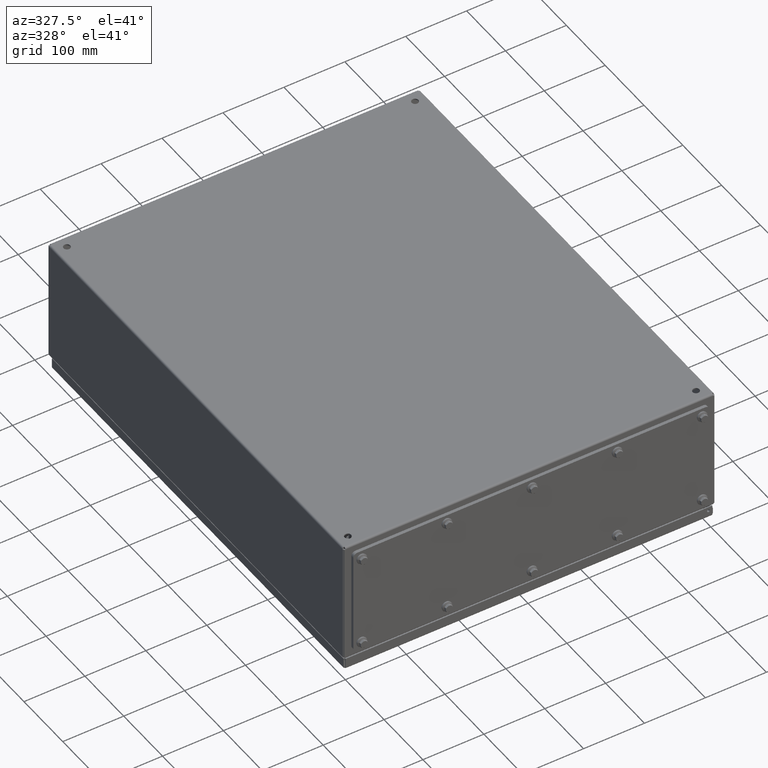
[diagram: clean part render]
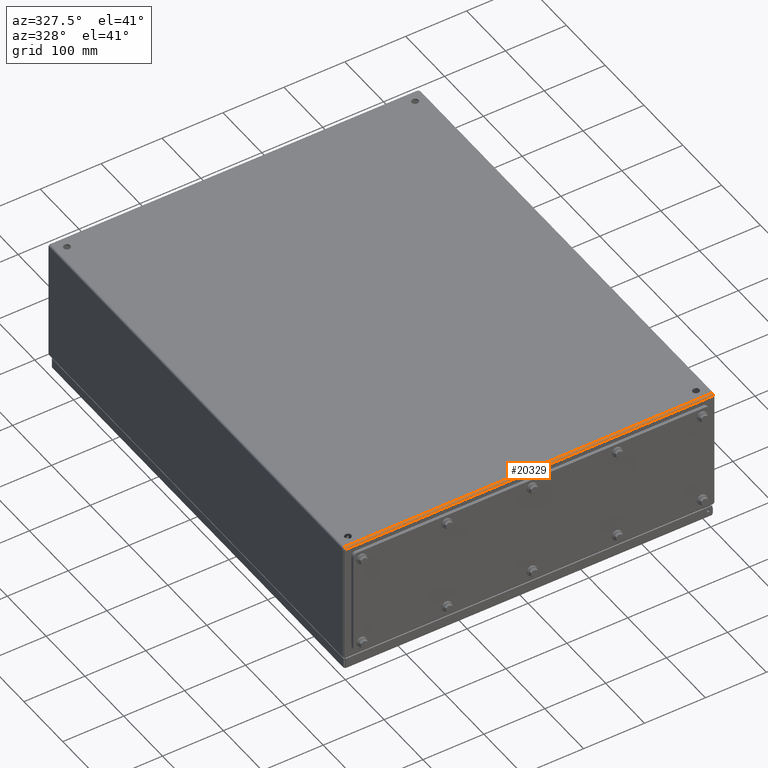
[diagram: same view with one face highlighted and labeled with its STEP entity id]
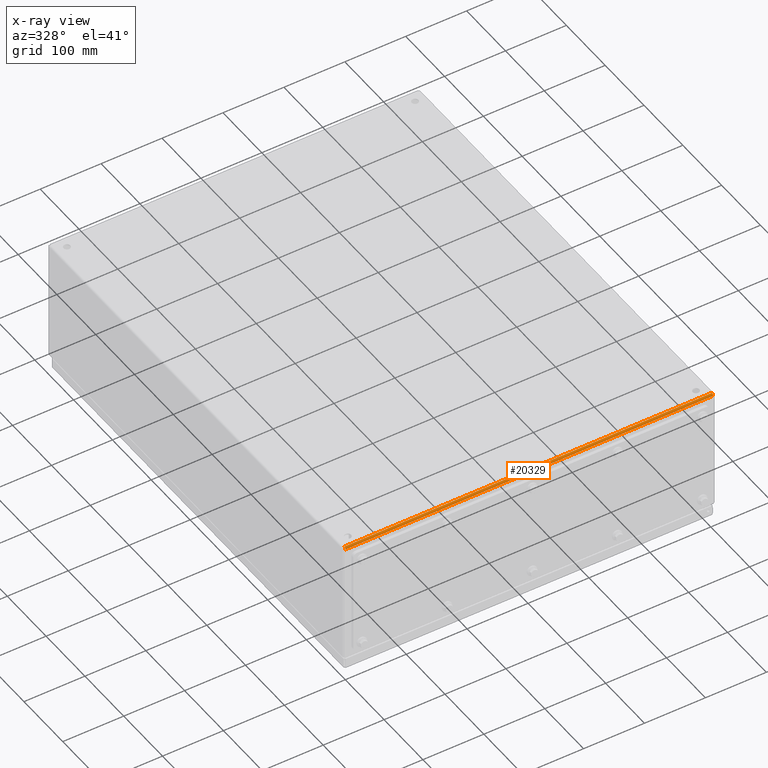
[diagram: x-ray of the same camera — body ghosted, the highlighted face saturated]
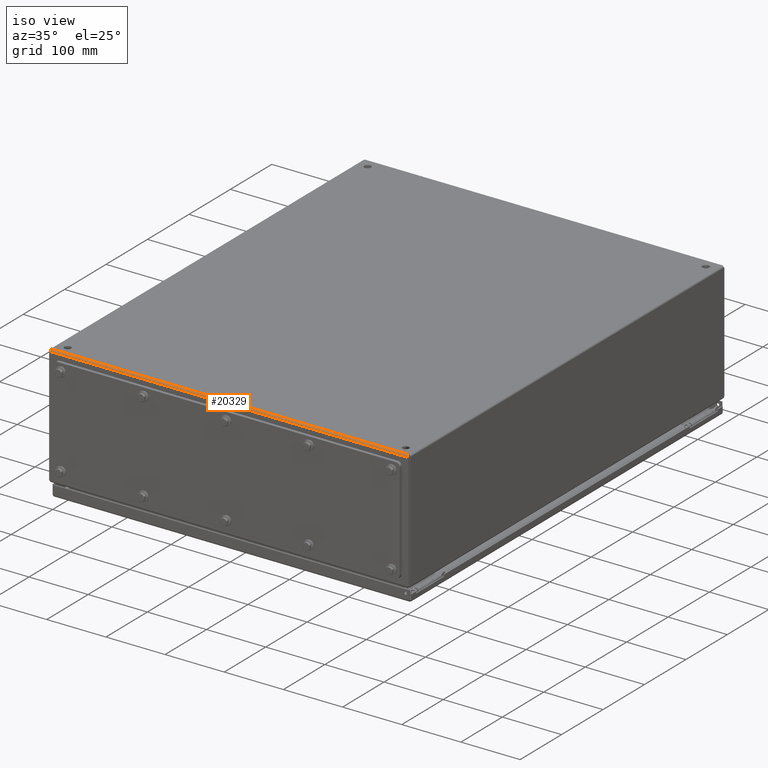
[diagram: same view with one face highlighted and labeled with its STEP entity id]
A machine part, auxiliary view. The second image highlights one B-rep face of the part: STEP entity #20329.
The next image is the same camera in x-ray: the body ghosted, the highlighted face saturated — about 0% of this face is hidden behind the body in this view.
A second angle (iso view) of the same face is appended — the face is thin or edge-on in the first view.
In plain terms, the highlighted cylindrical surface (edge-blend (fillet) strip) has radius 3.0702 mm, axis along (1, 0, -0).
Its self-contained STEP definition (entity closure, byte-faithful):
#2013=FACE_OUTER_BOUND('',#3221,.T.);
#3221=EDGE_LOOP('',(#14051,#14052,#14053,#14054));
#4620=LINE('',#31654,#6112);
#4671=LINE('',#31758,#6163);
#6112=VECTOR('',#24765,0.393700787401575);
#6163=VECTOR('',#24848,0.393700787401575);
#7343=CIRCLE('',#22034,0.120874999999999);
#7344=CIRCLE('',#22035,0.120874999999999);
#8542=VERTEX_POINT('',#31651);
#8543=VERTEX_POINT('',#31653);
#8579=VERTEX_POINT('',#31755);
#8580=VERTEX_POINT('',#31757);
#10595=EDGE_CURVE('',#8542,#8543,#4620,.T.);
#10646=EDGE_CURVE('',#8579,#8542,#7343,.T.);
#10647=EDGE_CURVE('',#8580,#8579,#4671,.T.);
#10648=EDGE_CURVE('',#8543,#8580,#7344,.T.);
#14051=ORIENTED_EDGE('',*,*,#10595,.F.);
#14052=ORIENTED_EDGE('',*,*,#10646,.F.);
#14053=ORIENTED_EDGE('',*,*,#10647,.F.);
#14054=ORIENTED_EDGE('',*,*,#10648,.F.);
#19077=CYLINDRICAL_SURFACE('',#22033,0.120874999999999);
#20329=ADVANCED_FACE('',(#2013),#19077,.T.);
#22033=AXIS2_PLACEMENT_3D('',#31754,#24844,#24845);
#22034=AXIS2_PLACEMENT_3D('',#31756,#24846,#24847);
#22035=AXIS2_PLACEMENT_3D('',#31759,#24849,#24850);
#24765=DIRECTION('',(1.,-3.10895461844152E-33,-1.90368566108439E-49));
#24844=DIRECTION('center_axis',(-1.,0.,0.));
#24845=DIRECTION('ref_axis',(0.,-1.,0.));
#24846=DIRECTION('center_axis',(-1.,0.,0.));
#24847=DIRECTION('ref_axis',(0.,0.,-1.));
#24848=DIRECTION('',(-1.,0.,0.));
#24849=DIRECTION('center_axis',(1.,0.,0.));
#24850=DIRECTION('ref_axis',(0.,-1.,0.));
#31651=CARTESIAN_POINT('',(0.120875000000001,1.55219812648037E-15,0.120875));
#31653=CARTESIAN_POINT('',(23.879125,1.55219812648037E-15,0.120875));
#31654=CARTESIAN_POINT('',(12.,1.54946627848671E-15,0.120875));
#31754=CARTESIAN_POINT('Origin',(0.120875000000001,0.120875000000001,0.120875));
#31755=CARTESIAN_POINT('',(0.120875000000005,0.120875000000006,-1.09273919746571E-17));
#31756=CARTESIAN_POINT('Origin',(0.120875000000001,0.120875000000001,0.120875));
#31757=CARTESIAN_POINT('',(23.879125,0.120875000000001,-1.09273919746571E-17));
#31758=CARTESIAN_POINT('',(17.9395625,0.120875000000001,0.));
#31759=CARTESIAN_POINT('Origin',(23.879125,0.120875000000001,0.120875));